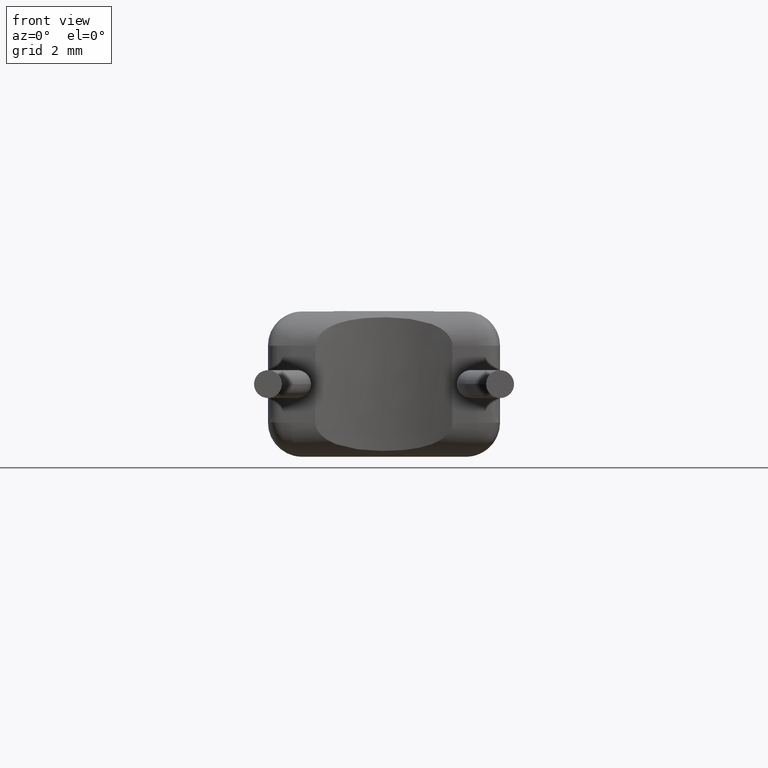
[diagram: clean part render]
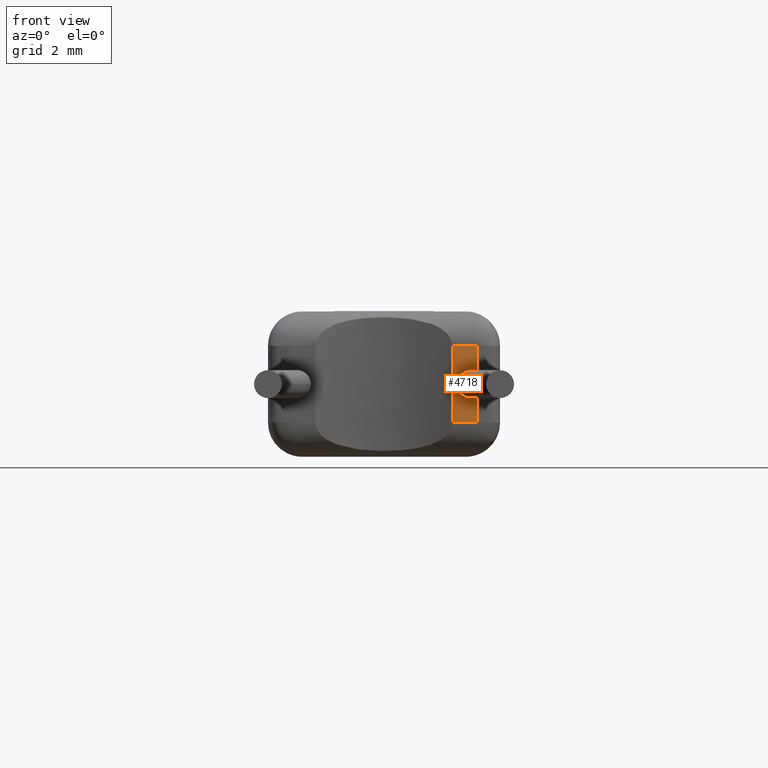
[diagram: same view with one face highlighted and labeled with its STEP entity id]
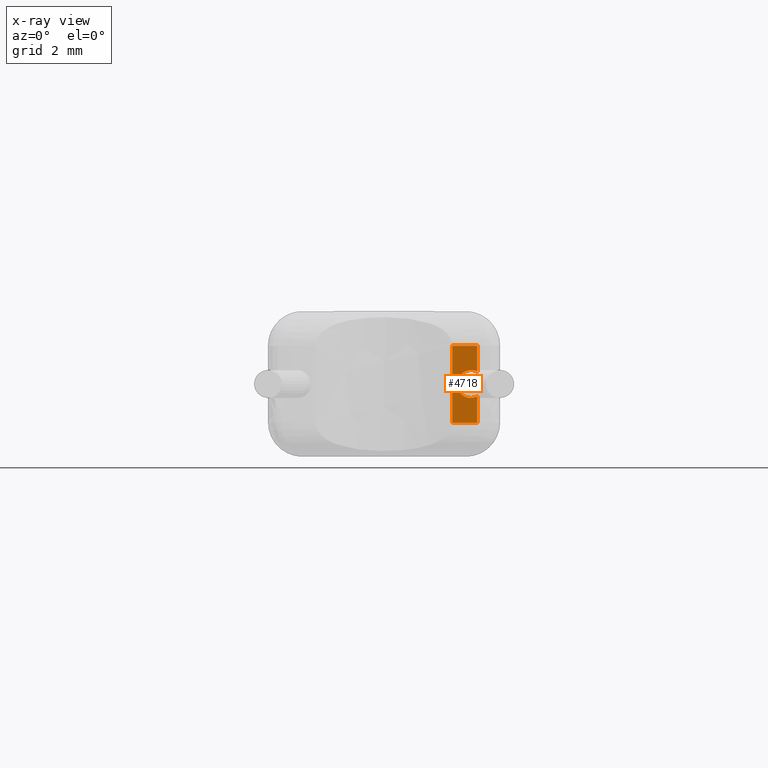
[diagram: x-ray of the same camera — body ghosted, the highlighted face saturated]
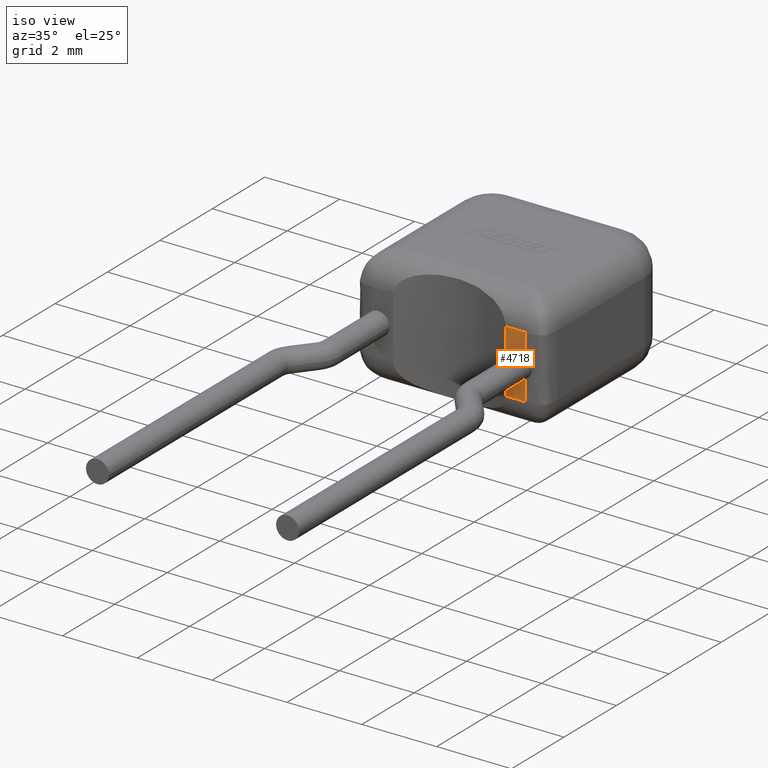
[diagram: same view with one face highlighted and labeled with its STEP entity id]
A machine part, front view. The second image highlights one B-rep face of the part: STEP entity #4718.
The next image is the same camera in x-ray: the body ghosted, the highlighted face saturated — about 1% of this face is hidden behind the body in this view.
A second angle (iso view) of the same face is appended — the face is thin or edge-on in the first view.
In plain terms, the highlighted planar face has unit normal (0, 1, 0).
Its self-contained STEP definition (entity closure, byte-faithful):
#112 = EDGE_CURVE ( 'NONE', #3385, #6525, #4169, .T. ) ;
#121 = AXIS2_PLACEMENT_3D ( 'NONE', #2948, #5612, #2415 ) ;
#141 = B_SPLINE_CURVE_WITH_KNOTS ( 'NONE', 3,
 ( #2453, #1396, #6662, #2989 ),
 .UNSPECIFIED., .F., .F.,
 ( 4, 4 ),
 ( 0.5852108421687963700, 0.7641509433962261300 ),
 .UNSPECIFIED. ) ;
#249 = LINE ( 'NONE', #6712, #2915 ) ;
#261 = CARTESIAN_POINT ( 'NONE',  ( 4.440000000000000400, 0.0000000000000000000, 1.285000000000000100 ) ) ;
#368 = VERTEX_POINT ( 'NONE', #950 ) ;
#444 = EDGE_LOOP ( 'NONE', ( #2110, #4221, #2356, #5209, #3698, #491, #6513, #2529 ) ) ;
#491 = ORIENTED_EDGE ( 'NONE', *, *, #3543, .F. ) ;
#623 = CARTESIAN_POINT ( 'NONE',  ( 4.440000000000000400, 0.0000000000000000000, 1.590000000000000300 ) ) ;
#700 = CARTESIAN_POINT ( 'NONE',  ( 0.0000000000000000000, 0.0000000000000000000, 3.180000000000000200 ) ) ;
#724 = DIRECTION ( 'NONE',  ( 0.0000000000000000000, 1.000000000000000000, 0.0000000000000000000 ) ) ;
#833 = FACE_OUTER_BOUND ( 'NONE', #444, .T. ) ;
#949 = EDGE_CURVE ( 'NONE', #2475, #3385, #3097, .T. ) ;
#950 = CARTESIAN_POINT ( 'NONE',  ( 4.580000000000000100, -5.421010862427522200E-017, 1.860970478096773100 ) ) ;
#1200 = DIRECTION ( 'NONE',  ( 1.000000000000000000, -0.0000000000000000000, 0.0000000000000000000 ) ) ;
#1396 = CARTESIAN_POINT ( 'NONE',  ( 4.579999999999999200, 0.0000000000000000000, 2.050646985397848600 ) ) ;
#1748 = DIRECTION ( 'NONE',  ( 0.0000000000000000000, -1.000000000000000000, 0.0000000000000000000 ) ) ;
#1882 = CARTESIAN_POINT ( 'NONE',  ( 4.580000000000000100, 0.0000000000000000000, 0.9396765080903508600 ) ) ;
#2003 = EDGE_CURVE ( 'NONE', #368, #2707, #141, .T. ) ;
#2110 = ORIENTED_EDGE ( 'NONE', *, *, #4917, .T. ) ;
#2310 = CARTESIAN_POINT ( 'NONE',  ( 4.580000000000000100, -5.421010862427522200E-017, 2.429999999999999700 ) ) ;
#2356 = ORIENTED_EDGE ( 'NONE', *, *, #3157, .T. ) ;
#2415 = DIRECTION ( 'NONE',  ( 0.0000000000000000000, 0.0000000000000000000, -1.000000000000000000 ) ) ;
#2417 = CIRCLE ( 'NONE', #5206, 0.3050000000000001600 ) ;
#2453 = CARTESIAN_POINT ( 'NONE',  ( 4.580000000000000100, -5.421010862427522200E-017, 1.860970478096773100 ) ) ;
#2457 = CARTESIAN_POINT ( 'NONE',  ( 0.0000000000000000000, 0.0000000000000000000, 2.429999999999999700 ) ) ;
#2475 = VERTEX_POINT ( 'NONE', #5383 ) ;
#2529 = ORIENTED_EDGE ( 'NONE', *, *, #3326, .T. ) ;
#2707 = VERTEX_POINT ( 'NONE', #2310 ) ;
#2739 = EDGE_CURVE ( 'NONE', #3514, #3618, #3531, .T. ) ;
#2786 = DIRECTION ( 'NONE',  ( 0.0000000000000000000, 0.0000000000000000000, -1.000000000000000000 ) ) ;
#2915 = VECTOR ( 'NONE', #5676, 1000.000000000000000 ) ;
#2942 = CARTESIAN_POINT ( 'NONE',  ( 4.035000000000000100, 0.0000000000000000000, 2.429999999999999700 ) ) ;
#2948 = CARTESIAN_POINT ( 'NONE',  ( 4.440000000000000400, 0.0000000000000000000, 1.590000000000000300 ) ) ;
#2989 = CARTESIAN_POINT ( 'NONE',  ( 4.580000000000000100, -5.421010862427522200E-017, 2.429999999999999700 ) ) ;
#3035 = AXIS2_PLACEMENT_3D ( 'NONE', #6213, #4132, #4650 ) ;
#3097 = CIRCLE ( 'NONE', #3035, 0.3050000000000001600 ) ;
#3157 = EDGE_CURVE ( 'NONE', #3618, #6525, #5024, .T. ) ;
#3326 = EDGE_CURVE ( 'NONE', #2707, #5003, #6665, .T. ) ;
#3371 = VECTOR ( 'NONE', #1200, 1000.000000000000000 ) ;
#3385 = VERTEX_POINT ( 'NONE', #261 ) ;
#3514 = VERTEX_POINT ( 'NONE', #4288 ) ;
#3531 = LINE ( 'NONE', #4961, #3371 ) ;
#3533 = CARTESIAN_POINT ( 'NONE',  ( 4.579999999999999200, 0.0000000000000000000, 1.129353016180702800 ) ) ;
#3543 = EDGE_CURVE ( 'NONE', #368, #2475, #2417, .T. ) ;
#3585 = AXIS2_PLACEMENT_3D ( 'NONE', #700, #724, #3977 ) ;
#3618 = VERTEX_POINT ( 'NONE', #5968 ) ;
#3698 = ORIENTED_EDGE ( 'NONE', *, *, #949, .F. ) ;
#3977 = DIRECTION ( 'NONE',  ( 0.0000000000000000000, -0.0000000000000000000, 1.000000000000000000 ) ) ;
#4132 = DIRECTION ( 'NONE',  ( 0.0000000000000000000, -1.000000000000000000, 0.0000000000000000000 ) ) ;
#4169 = CIRCLE ( 'NONE', #121, 0.3050000000000001600 ) ;
#4221 = ORIENTED_EDGE ( 'NONE', *, *, #2739, .T. ) ;
#4288 = CARTESIAN_POINT ( 'NONE',  ( 4.035000000000000100, 1.497130711957640200E-016, 0.7500000000000006700 ) ) ;
#4518 = CARTESIAN_POINT ( 'NONE',  ( 4.580000000000001000, -5.421010862427522200E-017, 0.7499999999999995600 ) ) ;
#4544 = DIRECTION ( 'NONE',  ( -1.000000000000000000, 0.0000000000000000000, -0.0000000000000000000 ) ) ;
#4650 = DIRECTION ( 'NONE',  ( 0.0000000000000000000, 0.0000000000000000000, -1.000000000000000000 ) ) ;
#4718 = ADVANCED_FACE ( 'NONE', ( #833 ), #5014, .F. ) ;
#4917 = EDGE_CURVE ( 'NONE', #5003, #3514, #249, .T. ) ;
#4961 = CARTESIAN_POINT ( 'NONE',  ( 4.580000000000001000, 0.0000000000000000000, 0.7500000000000002200 ) ) ;
#5003 = VERTEX_POINT ( 'NONE', #2942 ) ;
#5014 = PLANE ( 'NONE',  #3585 ) ;
#5024 = B_SPLINE_CURVE_WITH_KNOTS ( 'NONE', 3,
 ( #4518, #1882, #3533, #6690 ),
 .UNSPECIFIED., .F., .F.,
 ( 4, 4 ),
 ( 0.2358490566037734800, 0.4147891585758031200 ),
 .UNSPECIFIED. ) ;
#5206 = AXIS2_PLACEMENT_3D ( 'NONE', #623, #1748, #2786 ) ;
#5209 = ORIENTED_EDGE ( 'NONE', *, *, #112, .F. ) ;
#5240 = VECTOR ( 'NONE', #4544, 1000.000000000000000 ) ;
#5383 = CARTESIAN_POINT ( 'NONE',  ( 4.440000000000000400, 0.0000000000000000000, 1.895000000000000500 ) ) ;
#5612 = DIRECTION ( 'NONE',  ( 0.0000000000000000000, -1.000000000000000000, 0.0000000000000000000 ) ) ;
#5676 = DIRECTION ( 'NONE',  ( 0.0000000000000000000, 0.0000000000000000000, -1.000000000000000000 ) ) ;
#5968 = CARTESIAN_POINT ( 'NONE',  ( 4.580000000000001000, -5.421010862427522200E-017, 0.7499999999999995600 ) ) ;
#6156 = CARTESIAN_POINT ( 'NONE',  ( 4.580000000000001000, 0.0000000000000000000, 1.319029521903215800 ) ) ;
#6213 = CARTESIAN_POINT ( 'NONE',  ( 4.440000000000000400, 0.0000000000000000000, 1.590000000000000300 ) ) ;
#6513 = ORIENTED_EDGE ( 'NONE', *, *, #2003, .T. ) ;
#6525 = VERTEX_POINT ( 'NONE', #6156 ) ;
#6662 = CARTESIAN_POINT ( 'NONE',  ( 4.579999999999999200, 0.0000000000000000000, 2.240323492698924400 ) ) ;
#6665 = LINE ( 'NONE', #2457, #5240 ) ;
#6690 = CARTESIAN_POINT ( 'NONE',  ( 4.580000000000001000, 0.0000000000000000000, 1.319029521903215800 ) ) ;
#6712 = CARTESIAN_POINT ( 'NONE',  ( 4.035000000000000100, 1.497130711957640200E-016, 10.00000000000000000 ) ) ;